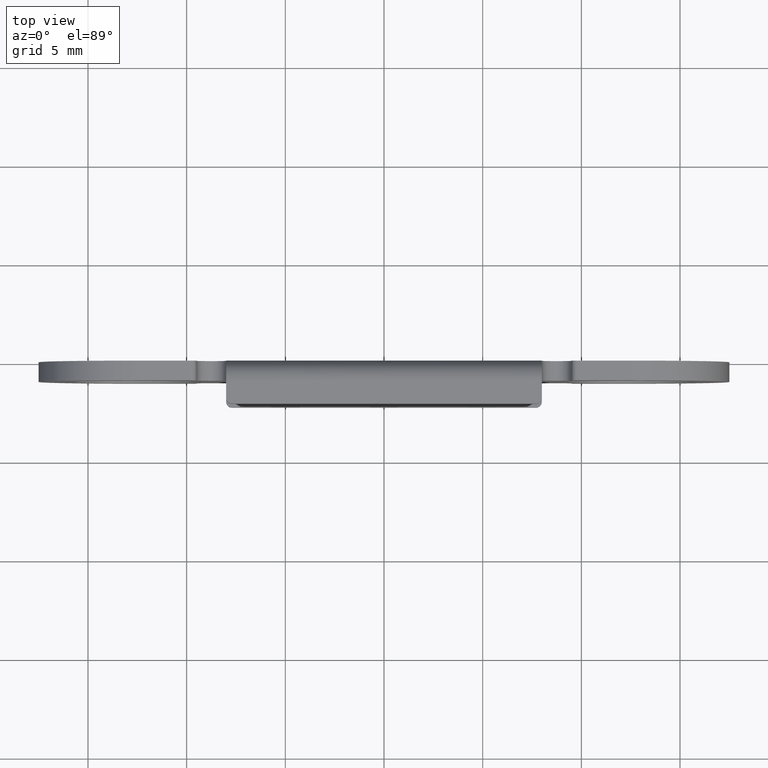
[diagram: clean part render]
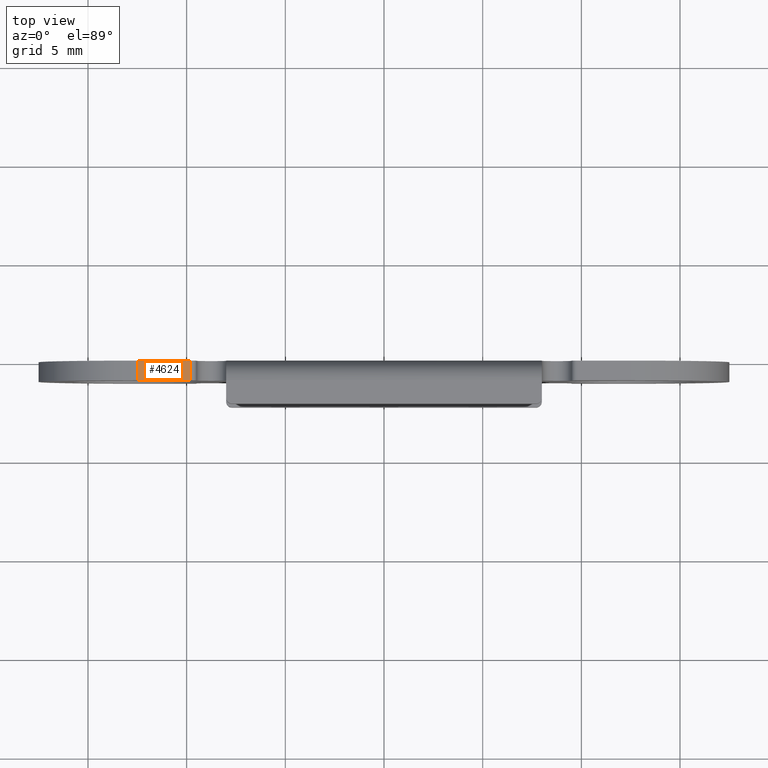
[diagram: same view with one face highlighted and labeled with its STEP entity id]
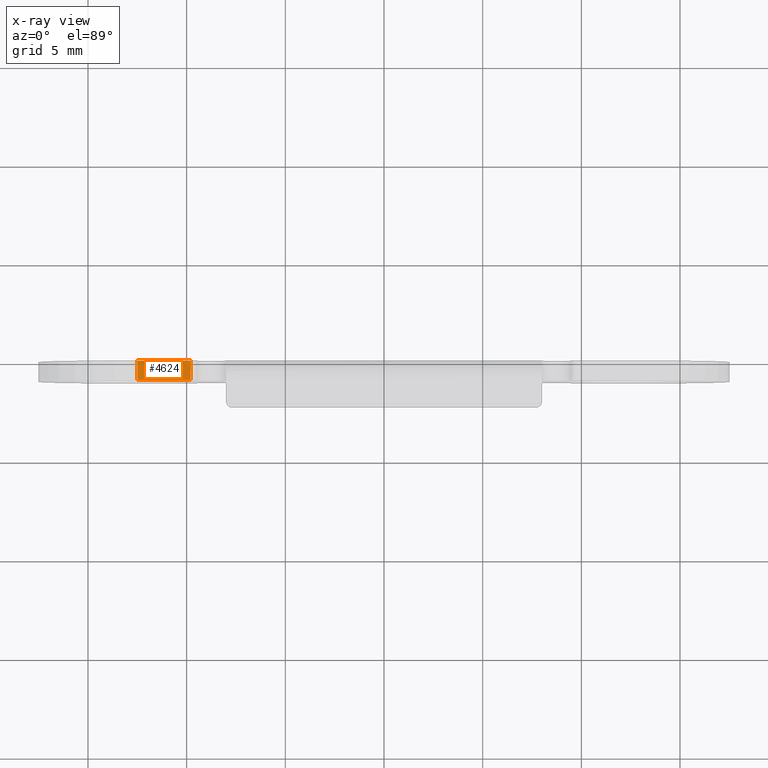
[diagram: x-ray of the same camera — body ghosted, the highlighted face saturated]
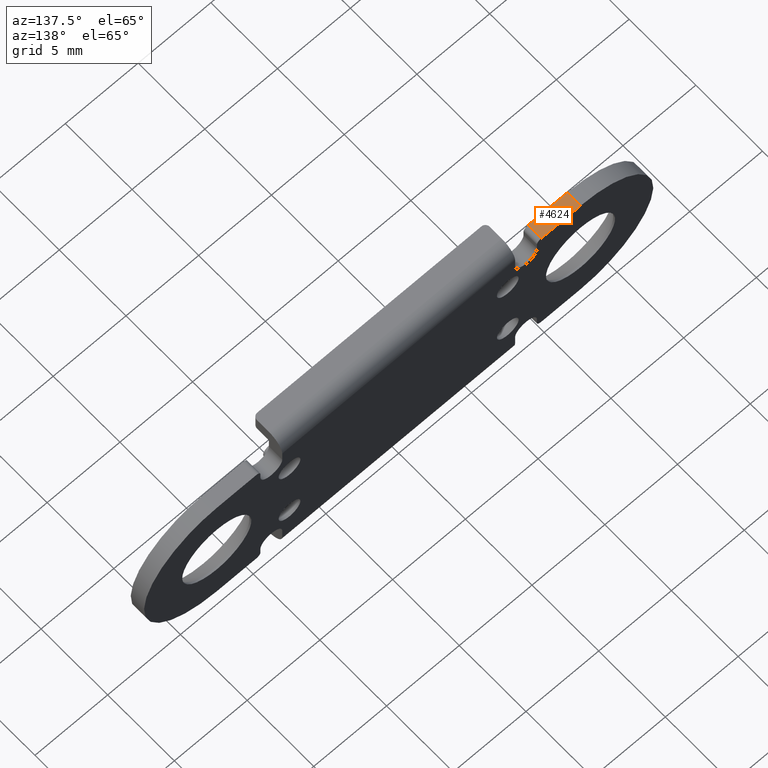
[diagram: same view with one face highlighted and labeled with its STEP entity id]
A machine part, top view. The second image highlights one B-rep face of the part: STEP entity #4624.
The next image is the same camera in x-ray: the body ghosted, the highlighted face saturated — about 0% of this face is hidden behind the body in this view.
A second angle (auxiliary view) of the same face is appended — the face is thin or edge-on in the first view.
In plain terms, the highlighted face is a freeform B-spline surface patch.
Its self-contained STEP definition (entity closure, byte-faithful):
#3113=CARTESIAN_POINT('',(-9.799999999999999,-1.0,5.0));
#3114=VERTEX_POINT('',#3113);
#3128=CARTESIAN_POINT('',(-12.500000000000000,-1.0,4.999999999996359));
#3129=VERTEX_POINT('',#3128);
#3130=CARTESIAN_POINT('',(-12.500000000000000,-1.0,4.999999999996359));
#3131=CARTESIAN_POINT('',(-9.799999999999999,-1.0,5.0));
#3132=QUASI_UNIFORM_CURVE('',1,(#3130,#3131),.UNSPECIFIED.,.F.,.U.);
#3133=EDGE_CURVE('',#3129,#3114,#3132,.T.);
#3872=CARTESIAN_POINT('',(-12.500000000000000,0.0,4.999999999996359));
#3873=VERTEX_POINT('',#3872);
#3909=CARTESIAN_POINT('',(-12.500000000000000,-1.0,4.999999999996359));
#3910=CARTESIAN_POINT('',(-12.500000000000000,0.0,4.999999999996359));
#3911=QUASI_UNIFORM_CURVE('',1,(#3909,#3910),.UNSPECIFIED.,.F.,.U.);
#3912=EDGE_CURVE('',#3129,#3873,#3911,.T.);
#4584=CARTESIAN_POINT('',(-9.799999999999999,0.0,5.0));
#4585=VERTEX_POINT('',#4584);
#4599=CARTESIAN_POINT('',(-9.799999999999999,-1.0,5.0));
#4600=CARTESIAN_POINT('',(-9.799999999999999,0.0,5.0));
#4601=QUASI_UNIFORM_CURVE('',1,(#4599,#4600),.UNSPECIFIED.,.F.,.U.);
#4602=EDGE_CURVE('',#3114,#4585,#4601,.T.);
#4609=CARTESIAN_POINT('',(-12.634864994766881,-1.049949998061806,5.0));
#4610=CARTESIAN_POINT('',(-9.665134932813478,-1.049949998061806,5.0));
#4611=CARTESIAN_POINT('',(-12.634864994766881,0.049950024883896,5.0));
#4612=CARTESIAN_POINT('',(-9.665134932813478,0.049950024883896,5.0));
#4613=B_SPLINE_SURFACE_WITH_KNOTS('',1,1,((#4609,#4611),(#4610,#4612)),.UNSPECIFIED.,.F.,.F.,.U.,(2,2),(2,2),(0.0,2.969730061953397),(0.041708334948495,0.958291687403247),.UNSPECIFIED.);
#4614=CARTESIAN_POINT('',(-12.500000000000000,0.0,4.999999999996359));
#4615=CARTESIAN_POINT('',(-9.799999999999999,0.0,5.0));
#4616=QUASI_UNIFORM_CURVE('',1,(#4614,#4615),.UNSPECIFIED.,.F.,.U.);
#4617=EDGE_CURVE('',#3873,#4585,#4616,.T.);
#4618=ORIENTED_EDGE('',*,*,#4617,.F.);
#4619=ORIENTED_EDGE('',*,*,#3912,.F.);
#4620=ORIENTED_EDGE('',*,*,#3133,.T.);
#4621=ORIENTED_EDGE('',*,*,#4602,.T.);
#4622=EDGE_LOOP('',(#4618,#4619,#4620,#4621));
#4623=FACE_OUTER_BOUND('',#4622,.T.);
#4624=ADVANCED_FACE('',(#4623),#4613,.T.);